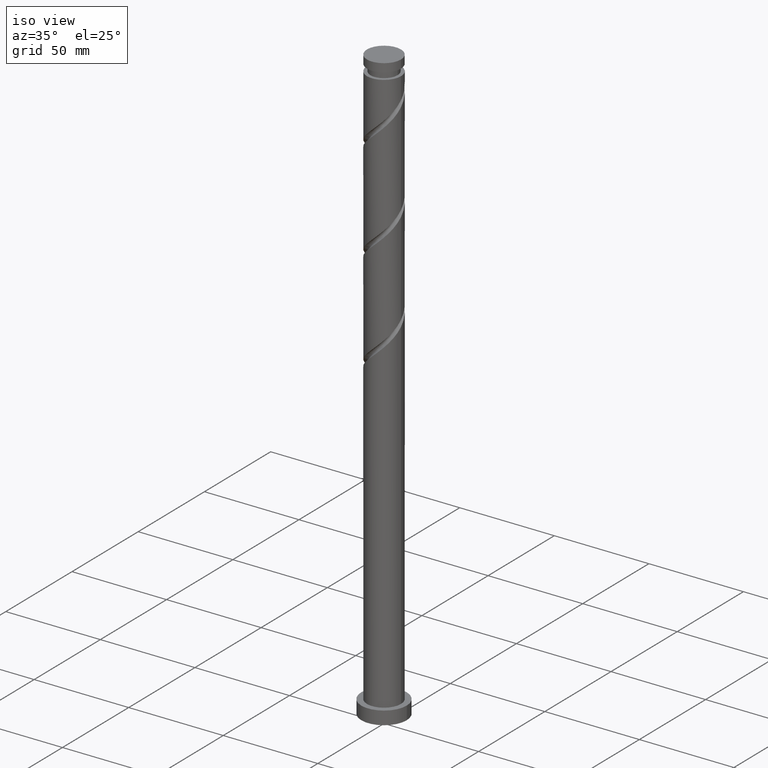
[diagram: clean part render]
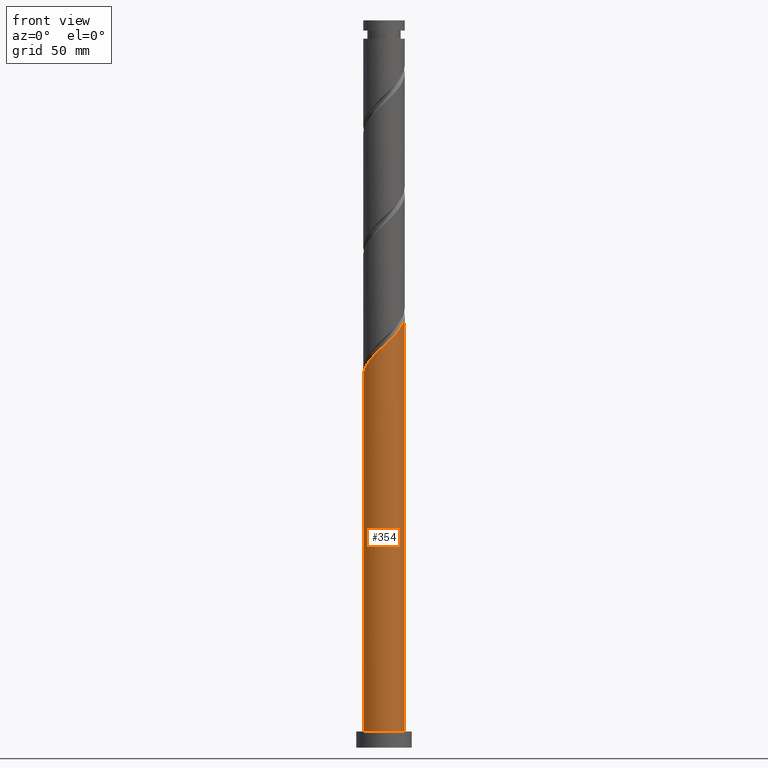
[diagram: tour spotlight — one face highlighted and labeled with its STEP entity id]
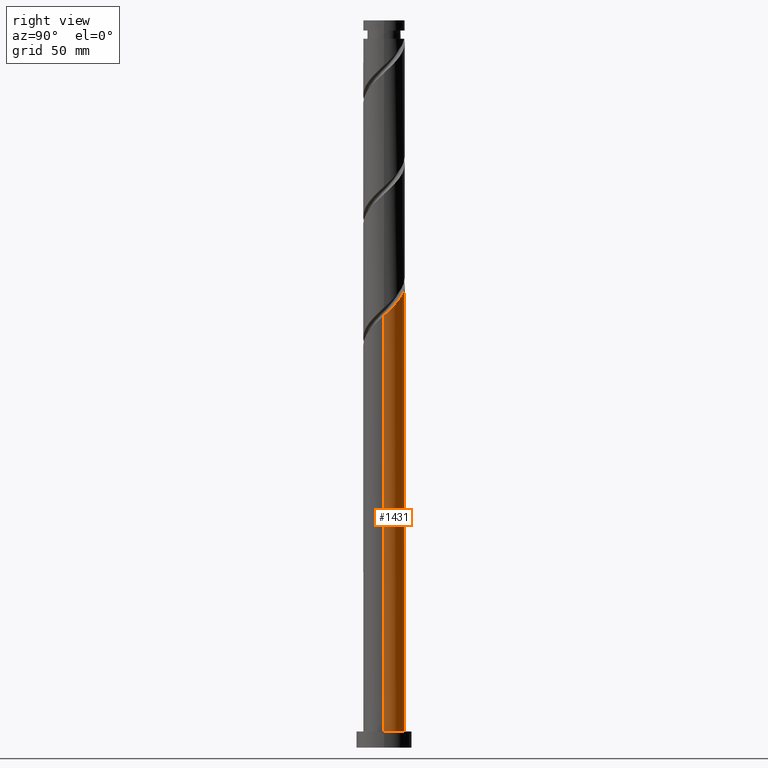
[diagram: tour spotlight — one face highlighted and labeled with its STEP entity id]
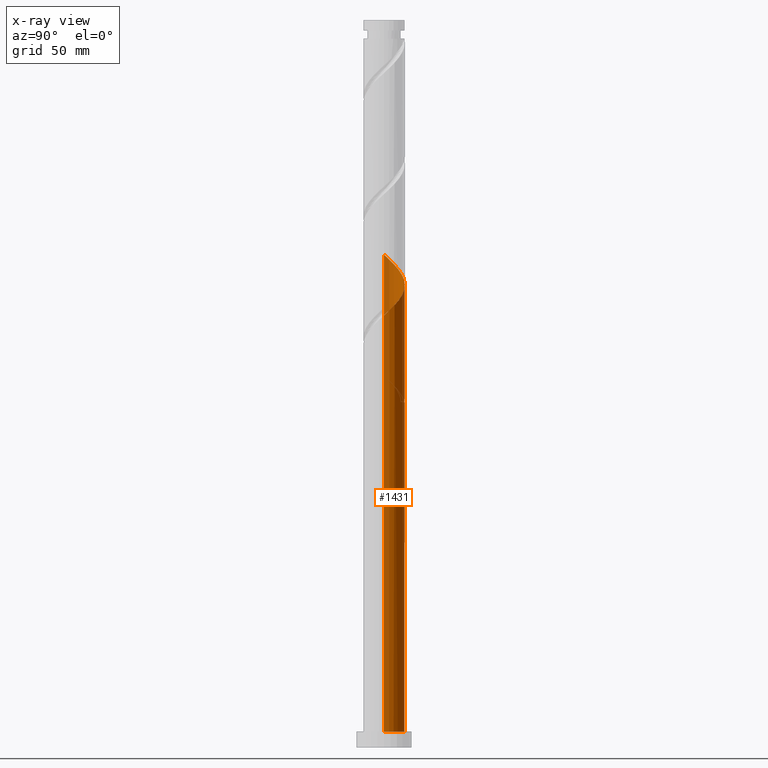
[diagram: x-ray of the same camera — body ghosted, this tour face saturated]
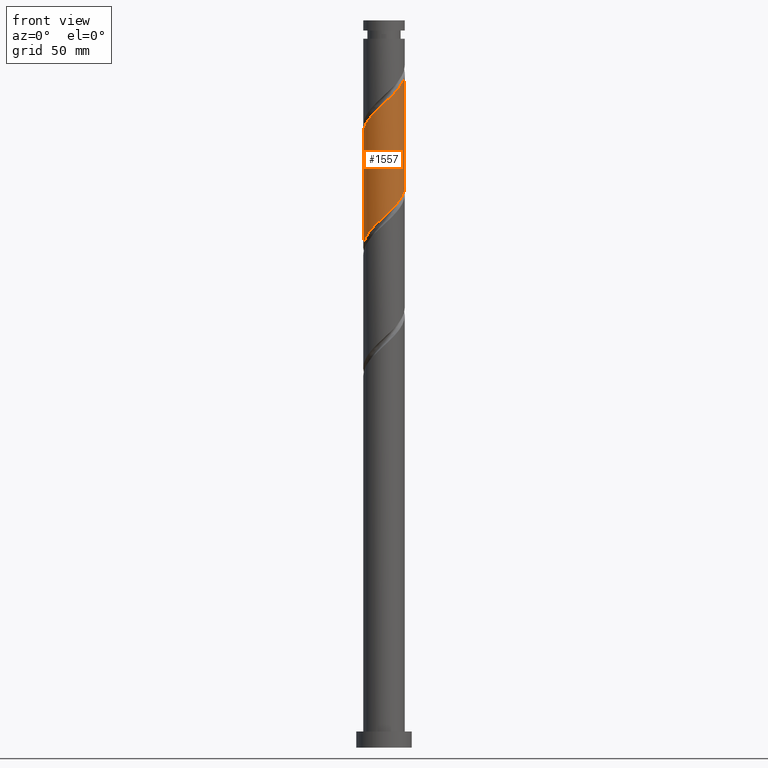
[diagram: tour spotlight — one face highlighted and labeled with its STEP entity id]
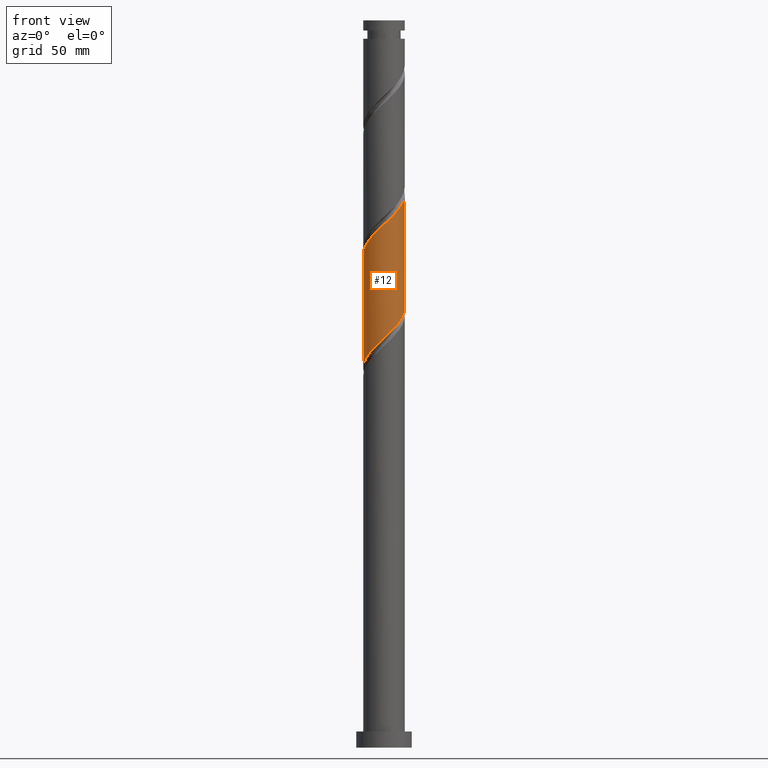
[diagram: tour spotlight — one face highlighted and labeled with its STEP entity id]
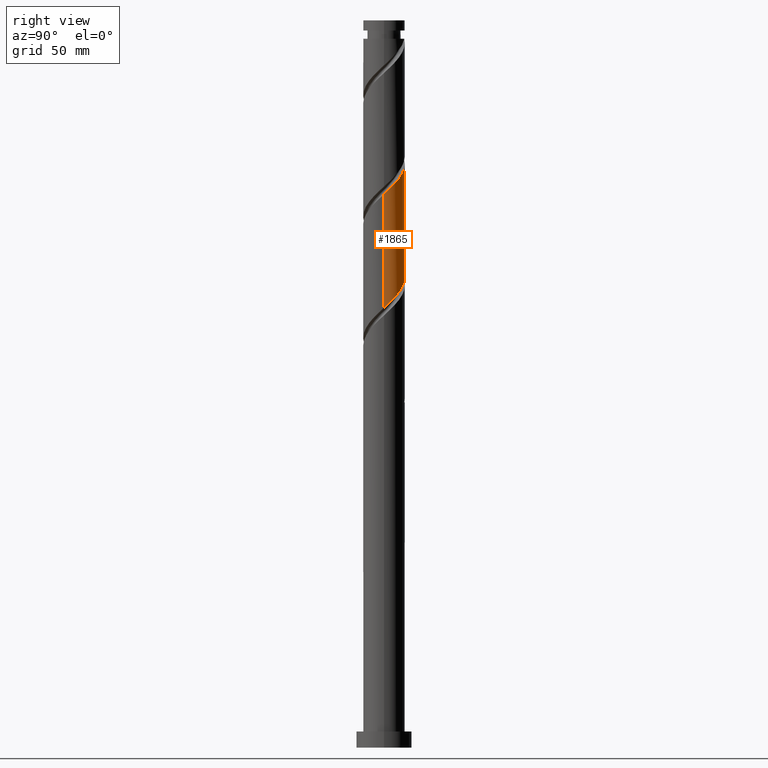
[diagram: tour spotlight — one face highlighted and labeled with its STEP entity id]
A machine part: a face-by-face anatomy tour. The part has 21 B-rep faces; the first image is the clean iso view, then the 5 largest visible faces are spotlighted one at a time (largest first), each with its STEP entity span.

Face 1 — front view, entity #354. In plain terms, the highlighted cylindrical surface (edge-blend (fillet) strip) has radius 9 mm, axis along (-0, -0, -1).
Definition (entity closure, byte-faithful):
#76 = AXIS2_PLACEMENT_3D ( 'NONE', #1629, #883, #1776 ) ;
#92 = CARTESIAN_POINT ( 'NONE',  ( -8.200334224640116076, -3.708708481964599457, 164.5176627942442451 ) ) ;
#93 = CARTESIAN_POINT ( 'NONE',  ( 9.000000000000000000, 1.102182119232617714E-15, 7.000000000000000000 ) ) ;
#143 = CARTESIAN_POINT ( 'NONE',  ( 2.784752716710899190, -8.618205312535543783, 176.7051627942442735 ) ) ;
#226 = CARTESIAN_POINT ( 'NONE',  ( -9.000000000000010658, -0.9045340337332866687, 161.8064167953018000 ) ) ;
#237 = CARTESIAN_POINT ( 'NONE',  ( -7.782463136744686594, -4.632664247218298392, 165.4551627942442167 ) ) ;
#256 = CARTESIAN_POINT ( 'NONE',  ( 6.248274648048931290, -6.556475762541458252, 180.4551627942442167 ) ) ;
#269 = CARTESIAN_POINT ( 'NONE',  ( -2.213239710400117577, -8.723621380155615057, 172.0176627942442451 ) ) ;
#279 = CARTESIAN_POINT ( 'NONE',  ( -6.556475762541458252, -6.248274648048931290, 167.3301627942442451 ) ) ;
#354 = ADVANCED_FACE ( 'NONE', ( #1765 ), #1617, .T. ) ;
#362 = CARTESIAN_POINT ( 'NONE',  ( -9.000000000000000000, 0.000000000000000000, 7.000000000000000000 ) ) ;
#388 = CARTESIAN_POINT ( 'NONE',  ( 8.972993605030067599, -1.230323642922521277, 186.0801627942442451 ) ) ;
#398 = CARTESIAN_POINT ( 'NONE',  ( 9.000000000000007105, -0.1082960744975142720, 187.1177830281130809 ) ) ;
#414 = LINE ( 'NONE', #879, #1441 ) ;
#432 = CARTESIAN_POINT ( 'NONE',  ( -5.001719316145864624, -7.550570467503629146, 169.2051627942442167 ) ) ;
#462 = CARTESIAN_POINT ( 'NONE',  ( 4.632664247218296616, -7.782463136744686594, 178.5801627942442167 ) ) ;
#530 = CARTESIAN_POINT ( 'NONE',  ( 0.000000000000000000, 0.000000000000000000, 7.000000000000000000 ) ) ;
#533 = CARTESIAN_POINT ( 'NONE',  ( 8.474249155281164292, -3.196155777877714765, 184.2051627942441883 ) ) ;
#536 = CARTESIAN_POINT ( 'NONE',  ( -9.000000000000007105, -1.268690749329735236E-15, 160.9681457163381992 ) ) ;
#543 = VERTEX_POINT ( 'NONE', #93 ) ;
#659 = CARTESIAN_POINT ( 'NONE',  ( 9.000000000000007105, 1.492577352152629559E-17, 187.2181457163381992 ) ) ;
#673 = CARTESIAN_POINT ( 'NONE',  ( 7.550570467503629146, -5.001719316145864624, 182.3301627942442451 ) ) ;
#707 = CARTESIAN_POINT ( 'NONE',  ( 5.440469447633614841, -7.169469449643073311, 179.5176627942442167 ) ) ;
#746 = DIRECTION ( 'NONE',  ( -0.000000000000000000, -0.000000000000000000, -1.000000000000000000 ) ) ;
#775 =( BOUNDED_CURVE ( )  B_SPLINE_CURVE ( 2, ( #536, #226, #1129, #1719, #92, #237, #846, #279, #1467, #432, #1017, #884, #269, #876, #1918, #1179, #1479, #143, #1791, #462, #707, #256, #1133, #673, #1153, #533, #1724, #388, #1593, #398, #1449 ),
 .UNSPECIFIED., .F., .T. ) 
 B_SPLINE_CURVE_WITH_KNOTS ( ( 3, 2, 2, 2, 2, 2, 2, 2, 2, 2, 2, 2, 2, 2, 2, 3 ),
 ( 0.05453034012992202112, 0.06250000000000000000, 0.07142857142857139685, 0.08035714285714290472, 0.08928571428571430157, 0.09821428571428569843, 0.1071428571428570953, 0.1160714285714286031, 0.1250000000000000000, 0.1339285714285713969, 0.1428571428571429047, 0.1517857142857143016, 0.1607142857142856984, 0.1696428571428570953, 0.1785714285714286031, 0.1795303401299220836 ),
 .UNSPECIFIED. ) 
 CURVE ( )  GEOMETRIC_REPRESENTATION_ITEM ( )  RATIONAL_B_SPLINE_CURVE ( ( 0.9079949616361950859, 0.9039886423360582457, 0.9090909090909249368, 0.9033747362665999203, 0.9090909090909249368, 0.9033747362665999203, 0.9090909090909249368, 0.9033747362665999203, 0.9090909090909249368, 0.9033747362665999203, 0.9090909090909249368, 0.9033747362665999203, 0.9090909090909249368, 0.9033747362665999203, 0.9090909090909249368, 0.9033747362665999203, 0.9090909090909249368, 0.9033747362665999203, 0.9090909090909249368, 0.9033747362665999203, 0.9090909090909249368, 0.9033747362665999203, 0.9090909090909249368, 0.9033747362665999203, 0.9090909090909249368, 0.9033747362665999203, 0.9090909090909249368, 0.9033747362665999203, 0.9090909090909249368, 0.9084770030214667225, 0.9079949616361950859 ) ) 
 REPRESENTATION_ITEM ( '' )  );
#806 = ORIENTED_EDGE ( 'NONE', *, *, #1102, .F. ) ;
#846 = CARTESIAN_POINT ( 'NONE',  ( -7.169469449643073311, -5.440469447633615729, 166.3926627942442451 ) ) ;
#876 = CARTESIAN_POINT ( 'NONE',  ( -1.230323642922521277, -8.972993605030069375, 172.9551627942442167 ) ) ;
#879 = CARTESIAN_POINT ( 'NONE',  ( 9.000000000000000000, 1.102182119232617714E-15, 315.0000000000000000 ) ) ;
#883 = DIRECTION ( 'NONE',  ( -0.000000000000000000, -0.000000000000000000, -1.000000000000000000 ) ) ;
#884 = CARTESIAN_POINT ( 'NONE',  ( -3.196155777877714765, -8.474249155281164292, 171.0801627942442735 ) ) ;
#888 = VECTOR ( 'NONE', #746, 1000.000000000000000 ) ;
#921 = LINE ( 'NONE', #1795, #888 ) ;
#979 = VERTEX_POINT ( 'NONE', #659 ) ;
#1014 = EDGE_CURVE ( 'NONE', #1538, #543, #1484, .T. ) ;
#1017 = CARTESIAN_POINT ( 'NONE',  ( -4.098937547011789917, -8.012409811392394943, 170.1426627942442451 ) ) ;
#1100 = ORIENTED_EDGE ( 'NONE', *, *, #1014, .T. ) ;
#1102 = EDGE_CURVE ( 'NONE', #1496, #979, #775, .T. ) ;
#1112 = AXIS2_PLACEMENT_3D ( 'NONE', #530, #1879, #1260 ) ;
#1129 = CARTESIAN_POINT ( 'NONE',  ( -8.820000000000009166, -1.790977386791919423, 162.6426627942442167 ) ) ;
#1133 = CARTESIAN_POINT ( 'NONE',  ( 6.899422557776280662, -5.779097539343664103, 181.3926627942442735 ) ) ;
#1153 = CARTESIAN_POINT ( 'NONE',  ( 8.012409811392394943, -4.098937547011791693, 183.2676627942442167 ) ) ;
#1170 = DIRECTION ( 'NONE',  ( -0.000000000000000000, -0.000000000000000000, -1.000000000000000000 ) ) ;
#1179 = CARTESIAN_POINT ( 'NONE',  ( 0.7972020568729391021, -9.021794687464472773, 174.8301627942442735 ) ) ;
#1260 = DIRECTION ( 'NONE',  ( 1.000000000000000000, 0.000000000000000000, 0.000000000000000000 ) ) ;
#1265 = ORIENTED_EDGE ( 'NONE', *, *, #1639, .F. ) ;
#1441 = VECTOR ( 'NONE', #1170, 1000.000000000000000 ) ;
#1449 = CARTESIAN_POINT ( 'NONE',  ( 9.000000000000007105, 1.492577352152629559E-17, 187.2181457163381992 ) ) ;
#1467 = CARTESIAN_POINT ( 'NONE',  ( -5.779097539343663215, -6.899422557776280662, 168.2676627942443019 ) ) ;
#1479 = CARTESIAN_POINT ( 'NONE',  ( 1.790977386791919201, -8.820000000000009166, 175.7676627942442451 ) ) ;
#1484 = CIRCLE ( 'NONE', #1112, 9.000000000000000000 ) ;
#1496 = VERTEX_POINT ( 'NONE', #1834 ) ;
#1538 = VERTEX_POINT ( 'NONE', #362 ) ;
#1564 = ORIENTED_EDGE ( 'NONE', *, *, #1695, .T. ) ;
#1593 = CARTESIAN_POINT ( 'NONE',  ( 8.997394146247270186, -0.2165607930247911983, 187.0176627942442167 ) ) ;
#1617 = CYLINDRICAL_SURFACE ( 'NONE', #76, 9.000000000000000000 ) ;
#1629 = CARTESIAN_POINT ( 'NONE',  ( 0.000000000000000000, 0.000000000000000000, 315.0000000000000000 ) ) ;
#1639 = EDGE_CURVE ( 'NONE', #979, #543, #414, .T. ) ;
#1695 = EDGE_CURVE ( 'NONE', #1496, #1538, #921, .T. ) ;
#1719 = CARTESIAN_POINT ( 'NONE',  ( -8.618205312535543783, -2.784752716710900522, 163.5801627942442167 ) ) ;
#1724 = CARTESIAN_POINT ( 'NONE',  ( 8.723621380155615057, -2.213239710400118021, 185.1426627942441883 ) ) ;
#1765 = FACE_OUTER_BOUND ( 'NONE', #1904, .T. ) ;
#1776 = DIRECTION ( 'NONE',  ( -1.000000000000000000, 0.000000000000000000, 0.000000000000000000 ) ) ;
#1791 = CARTESIAN_POINT ( 'NONE',  ( 3.708708481964599013, -8.200334224640116076, 177.6426627942442451 ) ) ;
#1795 = CARTESIAN_POINT ( 'NONE',  ( -9.000000000000000000, 0.000000000000000000, 315.0000000000000000 ) ) ;
#1834 = CARTESIAN_POINT ( 'NONE',  ( -9.000000000000007105, -1.268690749329735039E-15, 160.9681457163381992 ) ) ;
#1879 = DIRECTION ( 'NONE',  ( 0.000000000000000000, 0.000000000000000000, 1.000000000000000000 ) ) ;
#1904 = EDGE_LOOP ( 'NONE', ( #1265, #806, #1564, #1100 ) ) ;
#1918 = CARTESIAN_POINT ( 'NONE',  ( -0.2165607930247903656, -8.997394146247270186, 173.8926627942442451 ) ) ;

Face 2 — right view, entity #1431. An x-ray twin of the same camera follows (body ghosted, this face saturated) — the face is partly hidden behind the body. In plain terms, the highlighted cylindrical surface (edge-blend (fillet) strip) has radius 9 mm, axis along (-0, -0, -1).
Definition (entity closure, byte-faithful):
#1 = CARTESIAN_POINT ( 'NONE',  ( -9.000000000000007105, 0.1082960744975130091, 213.3677830281131662 ) ) ;
#9 = CIRCLE ( 'NONE', #236, 9.000000000000000000 ) ;
#77 = CARTESIAN_POINT ( 'NONE',  ( -8.723621380155615057, 2.213239710400116689, 158.8926627942442167 ) ) ;
#93 = CARTESIAN_POINT ( 'NONE',  ( 9.000000000000000000, 1.102182119232617714E-15, 7.000000000000000000 ) ) ;
#97 = DIRECTION ( 'NONE',  ( -1.000000000000000000, 0.000000000000000000, 0.000000000000000000 ) ) ;
#116 = DIRECTION ( 'NONE',  ( -0.000000000000000000, -0.000000000000000000, -1.000000000000000000 ) ) ;
#164 = CARTESIAN_POINT ( 'NONE',  ( -7.550570467503629146, 5.001719316145864624, 208.5801627942442451 ) ) ;
#181 =( BOUNDED_CURVE ( )  B_SPLINE_CURVE ( 2, ( #685, #1757, #1434, #412, #227, #847, #877, #1275, #1869, #1018, #720, #867, #1316, #1306, #989, #1906, #577 ),
 .UNSPECIFIED., .F., .T. ) 
 B_SPLINE_CURVE_WITH_KNOTS ( ( 3, 2, 2, 2, 2, 2, 2, 2, 3 ),
 ( 0.9295303401299220836, 0.9375000000000000000, 0.9464285714285713969, 0.9553571428571429047, 0.9642857142857143016, 0.9732142857142856984, 0.9821428571428570953, 0.9910714285714286031, 1.000000000000000000 ),
 .UNSPECIFIED. ) 
 CURVE ( )  GEOMETRIC_REPRESENTATION_ITEM ( )  RATIONAL_B_SPLINE_CURVE ( ( 0.9079949616361887577, 0.9039886423360520284, 0.9090909090909186085, 0.9033747362665937031, 0.9090909090909186085, 0.9033747362665937031, 0.9090909090909186085, 0.9033747362665937031, 0.9090909090909186085, 0.9033747362665937031, 0.9090909090909186085, 0.9033747362665937031, 0.9090909090909186085, 0.9033747362665937031, 0.9090909090909186085, 0.9033747362665937031, 0.9090909090909186085 ) ) 
 REPRESENTATION_ITEM ( '' )  );
#184 = CARTESIAN_POINT ( 'NONE',  ( -3.708708481964599901, 8.200334224640114300, 151.3926627942442451 ) ) ;
#206 = CARTESIAN_POINT ( 'NONE',  ( -8.012409811392394943, 4.098937547011789917, 157.0176627942442451 ) ) ;
#212 = CARTESIAN_POINT ( 'NONE',  ( -6.248274648048933066, 6.556475762541458252, 154.2051627942442167 ) ) ;
#216 = CYLINDRICAL_SURFACE ( 'NONE', #1818, 9.000000000000000000 ) ;
#227 = CARTESIAN_POINT ( 'NONE',  ( -8.200334224640103642, 3.708708481964597237, 160.7676627942442735 ) ) ;
#231 = CARTESIAN_POINT ( 'NONE',  ( 0.000000000000000000, 0.000000000000000000, 149.5176627942442735 ) ) ;
#236 = AXIS2_PLACEMENT_3D ( 'NONE', #784, #1064, #761 ) ;
#247 = ORIENTED_EDGE ( 'NONE', *, *, #830, .F. ) ;
#259 = CARTESIAN_POINT ( 'NONE',  ( 7.782463136744686594, 4.632664247218295728, 191.7051627942442451 ) ) ;
#280 = CARTESIAN_POINT ( 'NONE',  ( -8.012409811392394943, 4.098937547011789917, 209.5176627942442451 ) ) ;
#290 = EDGE_CURVE ( 'NONE', #543, #1538, #9, .T. ) ;
#339 = CARTESIAN_POINT ( 'NONE',  ( 3.196155777877715654, 8.474249155281162516, 197.3301627942442167 ) ) ;
#341 = CARTESIAN_POINT ( 'NONE',  ( -8.999999999999998224, 3.447853683472598378E-15, 164.3171798721502910 ) ) ;
#362 = CARTESIAN_POINT ( 'NONE',  ( -9.000000000000000000, 0.000000000000000000, 7.000000000000000000 ) ) ;
#373 = CARTESIAN_POINT ( 'NONE',  ( -8.972993605030067599, 1.230323642922519944, 159.8301627942442451 ) ) ;
#381 = CARTESIAN_POINT ( 'NONE',  ( -9.000000000000007105, -1.268690749329735236E-15, 160.9681457163381992 ) ) ;
#411 = VERTEX_POINT ( 'NONE', #752 ) ;
#412 = CARTESIAN_POINT ( 'NONE',  ( -8.618205312535531348, 2.784752716710898746, 161.7051627942442735 ) ) ;
#414 = LINE ( 'NONE', #879, #1441 ) ;
#424 = LINE ( 'NONE', #1309, #1476 ) ;
#442 = CARTESIAN_POINT ( 'NONE',  ( 4.098937547011791693, 8.012409811392394943, 196.3926627942442167 ) ) ;
#473 = CARTESIAN_POINT ( 'NONE',  ( -8.972993605030067599, 1.230323642922519944, 212.3301627942442735 ) ) ;
#485 = CARTESIAN_POINT ( 'NONE',  ( -8.997394146247270186, 0.2165607930247899493, 213.2676627942442451 ) ) ;
#503 =( BOUNDED_CURVE ( )  B_SPLINE_CURVE ( 2, ( #1739, #710, #835, #1426, #1007, #259, #1527, #1357, #1345, #1792, #442, #339, #1054, #605, #1517, #1630, #743, #1368, #1067, #595, #1042, #763, #625, #164, #280, #754, #1223, #473, #485, #1, #918 ),
 .UNSPECIFIED., .F., .T. ) 
 B_SPLINE_CURVE_WITH_KNOTS ( ( 3, 2, 2, 2, 2, 2, 2, 2, 2, 2, 2, 2, 2, 2, 2, 3 ),
 ( 0.1795303401299220836, 0.1875000000000000000, 0.1964285714285713969, 0.2053571428571429047, 0.2142857142857143016, 0.2232142857142856984, 0.2321428571428570953, 0.2410714285714286031, 0.2500000000000000000, 0.2589285714285713969, 0.2678571428571429047, 0.2767857142857143016, 0.2857142857142856984, 0.2946428571428570953, 0.3035714285714286031, 0.3045303401299220836 ),
 .UNSPECIFIED. ) 
 CURVE ( )  GEOMETRIC_REPRESENTATION_ITEM ( )  RATIONAL_B_SPLINE_CURVE ( ( 0.9079949616361950859, 0.9039886423360582457, 0.9090909090909249368, 0.9033747362665999203, 0.9090909090909249368, 0.9033747362665999203, 0.9090909090909249368, 0.9033747362665999203, 0.9090909090909249368, 0.9033747362665999203, 0.9090909090909249368, 0.9033747362665999203, 0.9090909090909249368, 0.9033747362665999203, 0.9090909090909249368, 0.9033747362665999203, 0.9090909090909249368, 0.9033747362665999203, 0.9090909090909249368, 0.9033747362665999203, 0.9090909090909249368, 0.9033747362665999203, 0.9090909090909249368, 0.9033747362665999203, 0.9090909090909249368, 0.9033747362665999203, 0.9090909090909249368, 0.9033747362665999203, 0.9090909090909249368, 0.9084770030214667225, 0.9079949616361950859 ) ) 
 REPRESENTATION_ITEM ( '' )  );
#527 = CARTESIAN_POINT ( 'NONE',  ( -5.440469447633615729, 7.169469449643073311, 153.2676627942442735 ) ) ;
#543 = VERTEX_POINT ( 'NONE', #93 ) ;
#564 = ORIENTED_EDGE ( 'NONE', *, *, #1176, .T. ) ;
#577 = CARTESIAN_POINT ( 'NONE',  ( 1.790977386791921422, 8.819999999999996732, 149.5176627942442451 ) ) ;
#595 = CARTESIAN_POINT ( 'NONE',  ( -4.632664247218298392, 7.782463136744686594, 204.8301627942443019 ) ) ;
#605 = CARTESIAN_POINT ( 'NONE',  ( 1.230323642922521499, 8.972993605030067599, 199.2051627942443019 ) ) ;
#625 = CARTESIAN_POINT ( 'NONE',  ( -6.899422557776280662, 5.779097539343663215, 207.6426627942442167 ) ) ;
#659 = CARTESIAN_POINT ( 'NONE',  ( 9.000000000000007105, 1.492577352152629559E-17, 187.2181457163381992 ) ) ;
#660 = EDGE_CURVE ( 'NONE', #1738, #967, #181, .T. ) ;
#671 = DIRECTION ( 'NONE',  ( -1.000000000000000000, 0.000000000000000000, 0.000000000000000000 ) ) ;
#685 = CARTESIAN_POINT ( 'NONE',  ( -8.999999999999998224, 3.447853683472598378E-15, 164.3171798721502626 ) ) ;
#710 = CARTESIAN_POINT ( 'NONE',  ( 9.000000000000008882, 0.9045340337332924419, 188.0564167953017716 ) ) ;
#719 = EDGE_LOOP ( 'NONE', ( #247, #1847, #950, #1337, #1273, #564, #1837, #1056 ) ) ;
#720 = CARTESIAN_POINT ( 'NONE',  ( -4.098937547011781923, 8.012409811392387837, 155.1426627942442451 ) ) ;
#743 = CARTESIAN_POINT ( 'NONE',  ( -1.790977386791918535, 8.820000000000009166, 202.0176627942442451 ) ) ;
#746 = DIRECTION ( 'NONE',  ( -0.000000000000000000, -0.000000000000000000, -1.000000000000000000 ) ) ;
#752 = CARTESIAN_POINT ( 'NONE',  ( -1.790977386791918313, 8.820000000000009166, 149.5176627942442451 ) ) ;
#754 = CARTESIAN_POINT ( 'NONE',  ( -8.474249155281162516, 3.196155777877714321, 210.4551627942442167 ) ) ;
#761 = DIRECTION ( 'NONE',  ( 1.000000000000000000, 0.000000000000000000, 0.000000000000000000 ) ) ;
#763 = CARTESIAN_POINT ( 'NONE',  ( -6.248274648048933066, 6.556475762541458252, 206.7051627942442167 ) ) ;
#784 = CARTESIAN_POINT ( 'NONE',  ( 0.000000000000000000, 0.000000000000000000, 7.000000000000000000 ) ) ;
#795 = CARTESIAN_POINT ( 'NONE',  ( -4.632664247218298392, 7.782463136744686594, 152.3301627942441883 ) ) ;
#830 = EDGE_CURVE ( 'NONE', #979, #1347, #503, .T. ) ;
#835 = CARTESIAN_POINT ( 'NONE',  ( 8.820000000000009166, 1.790977386791919201, 188.8926627942442735 ) ) ;
#839 = DIRECTION ( 'NONE',  ( 0.000000000000000000, -0.000000000000000000, -1.000000000000000000 ) ) ;
#847 = CARTESIAN_POINT ( 'NONE',  ( -7.782463136744675047, 4.632664247218293063, 159.8301627942441883 ) ) ;
#867 = CARTESIAN_POINT ( 'NONE',  ( -3.196155777877709880, 8.474249155281153634, 154.2051627942442735 ) ) ;
#877 = CARTESIAN_POINT ( 'NONE',  ( -7.169469449643061765, 5.440469447633611288, 158.8926627942442451 ) ) ;
#879 = CARTESIAN_POINT ( 'NONE',  ( 9.000000000000000000, 1.102182119232617714E-15, 315.0000000000000000 ) ) ;
#888 = VECTOR ( 'NONE', #746, 1000.000000000000000 ) ;
#918 = CARTESIAN_POINT ( 'NONE',  ( -9.000000000000007105, -1.268690749329735236E-15, 213.4681457163381992 ) ) ;
#921 = LINE ( 'NONE', #1795, #888 ) ;
#939 = EDGE_CURVE ( 'NONE', #411, #1496, #1706, .T. ) ;
#950 = ORIENTED_EDGE ( 'NONE', *, *, #290, .T. ) ;
#967 = VERTEX_POINT ( 'NONE', #1289 ) ;
#979 = VERTEX_POINT ( 'NONE', #659 ) ;
#980 = CIRCLE ( 'NONE', #1596, 9.000000000000000000 ) ;
#989 = CARTESIAN_POINT ( 'NONE',  ( -0.2165607930247878399, 8.997394146247255975, 151.3926627942443304 ) ) ;
#1007 = CARTESIAN_POINT ( 'NONE',  ( 8.200334224640116076, 3.708708481964598125, 190.7676627942442167 ) ) ;
#1018 = CARTESIAN_POINT ( 'NONE',  ( -5.001719316145856631, 7.550570467503619376, 156.0801627942442451 ) ) ;
#1042 = CARTESIAN_POINT ( 'NONE',  ( -5.440469447633615729, 7.169469449643073311, 205.7676627942441883 ) ) ;
#1054 = CARTESIAN_POINT ( 'NONE',  ( 2.213239710400118909, 8.723621380155615057, 198.2676627942441883 ) ) ;
#1056 = ORIENTED_EDGE ( 'NONE', *, *, #1926, .F. ) ;
#1064 = DIRECTION ( 'NONE',  ( 0.000000000000000000, 0.000000000000000000, 1.000000000000000000 ) ) ;
#1067 = CARTESIAN_POINT ( 'NONE',  ( -3.708708481964599901, 8.200334224640114300, 203.8926627942442167 ) ) ;
#1098 = CARTESIAN_POINT ( 'NONE',  ( -8.474249155281162516, 3.196155777877714321, 157.9551627942441883 ) ) ;
#1104 = DIRECTION ( 'NONE',  ( -0.000000000000000000, -0.000000000000000000, -1.000000000000000000 ) ) ;
#1170 = DIRECTION ( 'NONE',  ( -0.000000000000000000, -0.000000000000000000, -1.000000000000000000 ) ) ;
#1176 = EDGE_CURVE ( 'NONE', #411, #967, #980, .T. ) ;
#1223 = CARTESIAN_POINT ( 'NONE',  ( -8.723621380155615057, 2.213239710400116689, 211.3926627942442167 ) ) ;
#1251 = CARTESIAN_POINT ( 'NONE',  ( -8.997394146247270186, 0.2165607930247899493, 160.7676627942442451 ) ) ;
#1273 = ORIENTED_EDGE ( 'NONE', *, *, #939, .F. ) ;
#1275 = CARTESIAN_POINT ( 'NONE',  ( -6.556475762541449370, 6.248274648048924185, 157.9551627942442451 ) ) ;
#1289 = CARTESIAN_POINT ( 'NONE',  ( 1.790977386791921422, 8.819999999999996732, 149.5176627942442451 ) ) ;
#1306 = CARTESIAN_POINT ( 'NONE',  ( -1.230323642922516170, 8.972993605030055164, 152.3301627942443019 ) ) ;
#1309 = CARTESIAN_POINT ( 'NONE',  ( -9.000000000000000000, 0.000000000000000000, 315.0000000000000000 ) ) ;
#1316 = CARTESIAN_POINT ( 'NONE',  ( -2.213239710400112692, 8.723621380155604399, 153.2676627942442451 ) ) ;
#1337 = ORIENTED_EDGE ( 'NONE', *, *, #1695, .F. ) ;
#1345 = CARTESIAN_POINT ( 'NONE',  ( 5.779097539343664103, 6.899422557776280662, 194.5176627942442735 ) ) ;
#1347 = VERTEX_POINT ( 'NONE', #1899 ) ;
#1357 = CARTESIAN_POINT ( 'NONE',  ( 6.556475762541460917, 6.248274648048930402, 193.5801627942442167 ) ) ;
#1368 = CARTESIAN_POINT ( 'NONE',  ( -2.784752716710900522, 8.618205312535543783, 202.9551627942442735 ) ) ;
#1410 = CARTESIAN_POINT ( 'NONE',  ( -7.550570467503629146, 5.001719316145864624, 156.0801627942442451 ) ) ;
#1421 = CARTESIAN_POINT ( 'NONE',  ( 0.000000000000000000, 0.000000000000000000, 315.0000000000000000 ) ) ;
#1426 = CARTESIAN_POINT ( 'NONE',  ( 8.618205312535543783, 2.784752716710899190, 189.8301627942441314 ) ) ;
#1431 = ADVANCED_FACE ( 'NONE', ( #1556 ), #216, .T. ) ;
#1434 = CARTESIAN_POINT ( 'NONE',  ( -8.819999999999996732, 1.790977386791920090, 162.6426627942442735 ) ) ;
#1441 = VECTOR ( 'NONE', #1170, 1000.000000000000000 ) ;
#1476 = VECTOR ( 'NONE', #116, 1000.000000000000000 ) ;
#1496 = VERTEX_POINT ( 'NONE', #1834 ) ;
#1517 = CARTESIAN_POINT ( 'NONE',  ( 0.2165607930247918089, 8.997394146247270186, 200.1426627942442451 ) ) ;
#1527 = CARTESIAN_POINT ( 'NONE',  ( 7.169469449643073311, 5.440469447633614841, 192.6426627942442451 ) ) ;
#1536 = CARTESIAN_POINT ( 'NONE',  ( -9.000000000000007105, 0.1082960744975200590, 160.8677830281130809 ) ) ;
#1538 = VERTEX_POINT ( 'NONE', #362 ) ;
#1545 = CARTESIAN_POINT ( 'NONE',  ( -1.790977386791918313, 8.820000000000009166, 149.5176627942442451 ) ) ;
#1556 = FACE_OUTER_BOUND ( 'NONE', #719, .T. ) ;
#1596 = AXIS2_PLACEMENT_3D ( 'NONE', #231, #839, #97 ) ;
#1630 = CARTESIAN_POINT ( 'NONE',  ( -0.7972020568729379919, 9.021794687464472773, 201.0801627942442451 ) ) ;
#1639 = EDGE_CURVE ( 'NONE', #979, #543, #414, .T. ) ;
#1695 = EDGE_CURVE ( 'NONE', #1496, #1538, #921, .T. ) ;
#1697 = CARTESIAN_POINT ( 'NONE',  ( -6.899422557776280662, 5.779097539343663215, 155.1426627942442167 ) ) ;
#1706 =( BOUNDED_CURVE ( )  B_SPLINE_CURVE ( 2, ( #1545, #1707, #184, #795, #527, #212, #1697, #1410, #206, #1098, #77, #373, #1251, #1536, #381 ),
 .UNSPECIFIED., .F., .T. ) 
 B_SPLINE_CURVE_WITH_KNOTS ( ( 3, 2, 2, 2, 2, 2, 2, 3 ),
 ( 0.000000000000000000, 0.008928571428571396851, 0.01785714285714290472, 0.02678571428571430504, 0.03571428571428569843, 0.04464285714285709528, 0.05357142857142861009, 0.05453034012992202112 ),
 .UNSPECIFIED. ) 
 CURVE ( )  GEOMETRIC_REPRESENTATION_ITEM ( )  RATIONAL_B_SPLINE_CURVE ( ( 0.9090909090909249368, 0.9033747362665999203, 0.9090909090909249368, 0.9033747362665999203, 0.9090909090909249368, 0.9033747362665999203, 0.9090909090909249368, 0.9033747362665999203, 0.9090909090909249368, 0.9033747362665999203, 0.9090909090909249368, 0.9033747362665999203, 0.9090909090909249368, 0.9084770030214667225, 0.9079949616361950859 ) ) 
 REPRESENTATION_ITEM ( '' )  );
#1707 = CARTESIAN_POINT ( 'NONE',  ( -2.784752716710900522, 8.618205312535543783, 150.4551627942442451 ) ) ;
#1738 = VERTEX_POINT ( 'NONE', #341 ) ;
#1739 = CARTESIAN_POINT ( 'NONE',  ( 9.000000000000007105, 1.492577352152629559E-17, 187.2181457163381992 ) ) ;
#1757 = CARTESIAN_POINT ( 'NONE',  ( -8.999999999999994671, 0.9045340337332943292, 163.4789087931867186 ) ) ;
#1792 = CARTESIAN_POINT ( 'NONE',  ( 5.001719316145865513, 7.550570467503626482, 195.4551627942442167 ) ) ;
#1795 = CARTESIAN_POINT ( 'NONE',  ( -9.000000000000000000, 0.000000000000000000, 315.0000000000000000 ) ) ;
#1818 = AXIS2_PLACEMENT_3D ( 'NONE', #1421, #1104, #671 ) ;
#1834 = CARTESIAN_POINT ( 'NONE',  ( -9.000000000000007105, -1.268690749329735039E-15, 160.9681457163381992 ) ) ;
#1837 = ORIENTED_EDGE ( 'NONE', *, *, #660, .F. ) ;
#1847 = ORIENTED_EDGE ( 'NONE', *, *, #1639, .T. ) ;
#1869 = CARTESIAN_POINT ( 'NONE',  ( -5.779097539343653445, 6.899422557776271780, 157.0176627942442451 ) ) ;
#1899 = CARTESIAN_POINT ( 'NONE',  ( -9.000000000000007105, -1.268690749329735039E-15, 213.4681457163381992 ) ) ;
#1906 = CARTESIAN_POINT ( 'NONE',  ( 0.7972020568729405454, 9.021794687464462115, 150.4551627942442167 ) ) ;
#1926 = EDGE_CURVE ( 'NONE', #1347, #1738, #424, .T. ) ;

Face 3 — front view, entity #1557. In plain terms, the highlighted cylindrical surface (edge-blend (fillet) strip) has radius 9 mm, axis along (-0, -0, -1).
Definition (entity closure, byte-faithful):
#5 = CARTESIAN_POINT ( 'NONE',  ( -7.782463136744686594, -4.632664247218298392, 270.4551627942441883 ) ) ;
#25 = CARTESIAN_POINT ( 'NONE',  ( -0.7972020568729413226, -9.021794687464462115, 229.2051627942442735 ) ) ;
#34 = CARTESIAN_POINT ( 'NONE',  ( 8.819999999999996732, -1.790977386791921200, 241.3926627942443019 ) ) ;
#51 = CARTESIAN_POINT ( 'NONE',  ( 6.899422557776280662, -5.779097539343664103, 286.3926627942442451 ) ) ;
#169 = CARTESIAN_POINT ( 'NONE',  ( 8.997394146247270186, -0.2165607930247911983, 292.0176627942442451 ) ) ;
#183 = CARTESIAN_POINT ( 'NONE',  ( -6.899422557776271780, -5.779097539343652556, 222.6426627942443019 ) ) ;
#187 = CARTESIAN_POINT ( 'NONE',  ( 4.632664247218296616, -7.782463136744686594, 283.5801627942441883 ) ) ;
#241 = LINE ( 'NONE', #851, #731 ) ;
#244 = CARTESIAN_POINT ( 'NONE',  ( -5.779097539343663215, -6.899422557776280662, 273.2676627942441883 ) ) ;
#248 = CARTESIAN_POINT ( 'NONE',  ( 9.000000000000007105, -1.358245390458892985E-15, 292.2181457163381992 ) ) ;
#278 = CARTESIAN_POINT ( 'NONE',  ( 1.230323642922515059, -8.972993605030055164, 231.0801627942442735 ) ) ;
#291 =( BOUNDED_CURVE ( )  B_SPLINE_CURVE ( 2, ( #741, #1492, #34, #1640, #336, #1222, #1525, #471, #1650, #1809, #1354, #894, #450, #278, #482, #25, #323, #1916, #917, #612, #1515, #773, #183, #1025, #1189, #585, #1200, #1178, #1503, #1478, #307 ),
 .UNSPECIFIED., .F., .T. ) 
 B_SPLINE_CURVE_WITH_KNOTS ( ( 3, 2, 2, 2, 2, 2, 2, 2, 2, 2, 2, 2, 2, 2, 2, 3 ),
 ( 0.5545303401299221946, 0.5625000000000000000, 0.5714285714285713969, 0.5803571428571429047, 0.5892857142857143016, 0.5982142857142856984, 0.6071428571428570953, 0.6160714285714286031, 0.6250000000000000000, 0.6339285714285713969, 0.6428571428571429047, 0.6517857142857143016, 0.6607142857142856984, 0.6696428571428570953, 0.6785714285714286031, 0.6795303401299221946 ),
 .UNSPECIFIED. ) 
 CURVE ( )  GEOMETRIC_REPRESENTATION_ITEM ( )  RATIONAL_B_SPLINE_CURVE ( ( 0.9079949616361886466, 0.9039886423360520284, 0.9090909090909186085, 0.9033747362665937031, 0.9090909090909186085, 0.9033747362665937031, 0.9090909090909186085, 0.9033747362665937031, 0.9090909090909186085, 0.9033747362665937031, 0.9090909090909186085, 0.9033747362665937031, 0.9090909090909186085, 0.9033747362665937031, 0.9090909090909186085, 0.9033747362665937031, 0.9090909090909186085, 0.9033747362665937031, 0.9090909090909186085, 0.9033747362665937031, 0.9090909090909186085, 0.9033747362665937031, 0.9090909090909186085, 0.9033747362665937031, 0.9090909090909186085, 0.9033747362665937031, 0.9090909090909186085, 0.9033747362665937031, 0.9090909090909186085, 0.9084770030214603942, 0.9079949616361886466 ) ) 
 REPRESENTATION_ITEM ( '' )  );
#302 = CARTESIAN_POINT ( 'NONE',  ( -3.196155777877714765, -8.474249155281164292, 276.0801627942441883 ) ) ;
#307 = CARTESIAN_POINT ( 'NONE',  ( -8.999999999999996447, 3.447853683472598378E-15, 216.8171798721502910 ) ) ;
#315 = CARTESIAN_POINT ( 'NONE',  ( -5.001719316145864624, -7.550570467503629146, 274.2051627942443019 ) ) ;
#320 = EDGE_CURVE ( 'NONE', #826, #658, #604, .T. ) ;
#323 = CARTESIAN_POINT ( 'NONE',  ( -1.790977386791920090, -8.819999999999996732, 228.2676627942442735 ) ) ;
#329 = CARTESIAN_POINT ( 'NONE',  ( -6.556475762541458252, -6.248274648048931290, 272.3301627942441883 ) ) ;
#336 = CARTESIAN_POINT ( 'NONE',  ( 8.200334224640103642, -3.708708481964597681, 239.5176627942442167 ) ) ;
#351 = EDGE_CURVE ( 'NONE', #658, #1609, #291, .T. ) ;
#370 = ORIENTED_EDGE ( 'NONE', *, *, #320, .F. ) ;
#379 = DIRECTION ( 'NONE',  ( -0.000000000000000000, -0.000000000000000000, -1.000000000000000000 ) ) ;
#403 = CARTESIAN_POINT ( 'NONE',  ( 8.999999999999994671, -4.701618659280815540E-15, 243.0671798721502910 ) ) ;
#450 = CARTESIAN_POINT ( 'NONE',  ( 2.213239710400111360, -8.723621380155604399, 232.0176627942442735 ) ) ;
#471 = CARTESIAN_POINT ( 'NONE',  ( 6.556475762541449370, -6.248274648048925961, 236.7051627942441883 ) ) ;
#482 = CARTESIAN_POINT ( 'NONE',  ( 0.2165607930247870350, -8.997394146247255975, 230.1426627942442451 ) ) ;
#498 = CARTESIAN_POINT ( 'NONE',  ( 9.000000000000007105, -1.358245390458892985E-15, 292.2181457163381992 ) ) ;
#514 = CARTESIAN_POINT ( 'NONE',  ( 8.474249155281164292, -3.196155777877714765, 289.2051627942441314 ) ) ;
#561 = CARTESIAN_POINT ( 'NONE',  ( -8.618205312535543783, -2.784752716710900522, 268.5801627942442451 ) ) ;
#562 = VECTOR ( 'NONE', #623, 1000.000000000000000 ) ;
#579 = DIRECTION ( 'NONE',  ( -1.000000000000000000, 0.000000000000000000, 0.000000000000000000 ) ) ;
#585 = CARTESIAN_POINT ( 'NONE',  ( -8.474249155281153634, -3.196155777877707660, 219.8301627942442451 ) ) ;
#604 = LINE ( 'NONE', #1211, #562 ) ;
#607 = CARTESIAN_POINT ( 'NONE',  ( -8.200334224640116076, -3.708708481964599457, 269.5176627942442451 ) ) ;
#612 = CARTESIAN_POINT ( 'NONE',  ( -4.632664247218293063, -7.782463136744674159, 225.4551627942442735 ) ) ;
#623 = DIRECTION ( 'NONE',  ( -0.000000000000000000, -0.000000000000000000, -1.000000000000000000 ) ) ;
#628 = CARTESIAN_POINT ( 'NONE',  ( 8.012409811392394943, -4.098937547011791693, 288.2676627942442451 ) ) ;
#658 = VERTEX_POINT ( 'NONE', #403 ) ;
#674 = CARTESIAN_POINT ( 'NONE',  ( -9.000000000000005329, -0.9045340337333186431, 266.8064167953018568 ) ) ;
#676 = ORIENTED_EDGE ( 'NONE', *, *, #351, .F. ) ;
#706 = CARTESIAN_POINT ( 'NONE',  ( -1.230323642922521277, -8.972993605030069375, 277.9551627942441883 ) ) ;
#731 = VECTOR ( 'NONE', #379, 1000.000000000000000 ) ;
#741 = CARTESIAN_POINT ( 'NONE',  ( 8.999999999999994671, -4.701618659280815540E-15, 243.0671798721502910 ) ) ;
#773 = CARTESIAN_POINT ( 'NONE',  ( -6.248274648048925961, -6.556475762541449370, 223.5801627942442451 ) ) ;
#780 = CARTESIAN_POINT ( 'NONE',  ( -7.169469449643073311, -5.440469447633615729, 271.3926627942442451 ) ) ;
#820 = CARTESIAN_POINT ( 'NONE',  ( 3.708708481964599013, -8.200334224640116076, 282.6426627942442451 ) ) ;
#826 = VERTEX_POINT ( 'NONE', #248 ) ;
#837 = FACE_OUTER_BOUND ( 'NONE', #1667, .T. ) ;
#851 = CARTESIAN_POINT ( 'NONE',  ( -9.000000000000000000, 0.000000000000000000, 315.0000000000000000 ) ) ;
#854 = CARTESIAN_POINT ( 'NONE',  ( -4.098937547011789917, -8.012409811392394943, 275.1426627942441883 ) ) ;
#894 = CARTESIAN_POINT ( 'NONE',  ( 3.196155777877707660, -8.474249155281153634, 232.9551627942442735 ) ) ;
#899 = CARTESIAN_POINT ( 'NONE',  ( -0.2165607930247903656, -8.997394146247270186, 278.8926627942441314 ) ) ;
#912 = CARTESIAN_POINT ( 'NONE',  ( 0.7972020568729391021, -9.021794687464472773, 279.8301627942443019 ) ) ;
#917 = CARTESIAN_POINT ( 'NONE',  ( -3.708708481964597237, -8.200334224640103642, 226.3926627942442735 ) ) ;
#934 = CARTESIAN_POINT ( 'NONE',  ( 2.784752716710899190, -8.618205312535543783, 281.7051627942441314 ) ) ;
#945 = CARTESIAN_POINT ( 'NONE',  ( 7.550570467503629146, -5.001719316145864624, 287.3301627942441314 ) ) ;
#971 = EDGE_CURVE ( 'NONE', #1507, #826, #1844, .T. ) ;
#999 = CARTESIAN_POINT ( 'NONE',  ( 0.000000000000000000, 0.000000000000000000, 315.0000000000000000 ) ) ;
#1025 = CARTESIAN_POINT ( 'NONE',  ( -7.550570467503618488, -5.001719316145855743, 221.7051627942442451 ) ) ;
#1032 = CARTESIAN_POINT ( 'NONE',  ( -2.213239710400117577, -8.723621380155615057, 277.0176627942442451 ) ) ;
#1091 = ORIENTED_EDGE ( 'NONE', *, *, #1152, .T. ) ;
#1109 = CARTESIAN_POINT ( 'NONE',  ( 8.723621380155615057, -2.213239710400118021, 290.1426627942443019 ) ) ;
#1111 = CARTESIAN_POINT ( 'NONE',  ( -9.000000000000007105, 7.462886760763147794E-17, 265.9681457163381992 ) ) ;
#1141 = DIRECTION ( 'NONE',  ( -0.000000000000000000, -0.000000000000000000, -1.000000000000000000 ) ) ;
#1152 = EDGE_CURVE ( 'NONE', #1507, #1609, #241, .T. ) ;
#1178 = CARTESIAN_POINT ( 'NONE',  ( -8.972993605030055164, -1.230323642922515281, 217.9551627942442735 ) ) ;
#1189 = CARTESIAN_POINT ( 'NONE',  ( -8.012409811392387837, -4.098937547011781923, 220.7676627942442735 ) ) ;
#1200 = CARTESIAN_POINT ( 'NONE',  ( -8.723621380155604399, -2.213239710400111360, 218.8926627942442735 ) ) ;
#1211 = CARTESIAN_POINT ( 'NONE',  ( 9.000000000000000000, 1.102182119232617714E-15, 315.0000000000000000 ) ) ;
#1215 = ORIENTED_EDGE ( 'NONE', *, *, #971, .F. ) ;
#1222 = CARTESIAN_POINT ( 'NONE',  ( 7.782463136744671495, -4.632664247218293063, 238.5801627942443304 ) ) ;
#1240 = AXIS2_PLACEMENT_3D ( 'NONE', #999, #1141, #579 ) ;
#1354 = CARTESIAN_POINT ( 'NONE',  ( 4.098937547011781035, -8.012409811392387837, 233.8926627942442451 ) ) ;
#1385 = CARTESIAN_POINT ( 'NONE',  ( 8.972993605030067599, -1.230323642922521277, 291.0801627942442451 ) ) ;
#1399 = CARTESIAN_POINT ( 'NONE',  ( 6.248274648048931290, -6.556475762541458252, 285.4551627942442451 ) ) ;
#1478 = CARTESIAN_POINT ( 'NONE',  ( -8.999999999999996447, -0.1082960744974981321, 216.9175425603754093 ) ) ;
#1492 = CARTESIAN_POINT ( 'NONE',  ( 8.999999999999992895, -0.9045340337333079850, 242.2289087931866618 ) ) ;
#1503 = CARTESIAN_POINT ( 'NONE',  ( -8.997394146247255975, -0.2165607930247874791, 217.0176627942442735 ) ) ;
#1507 = VERTEX_POINT ( 'NONE', #1111 ) ;
#1510 = CARTESIAN_POINT ( 'NONE',  ( 1.790977386791919201, -8.820000000000009166, 280.7676627942442451 ) ) ;
#1515 = CARTESIAN_POINT ( 'NONE',  ( -5.440469447633611288, -7.169469449643059988, 224.5176627942443019 ) ) ;
#1525 = CARTESIAN_POINT ( 'NONE',  ( 7.169469449643059988, -5.440469447633611288, 237.6426627942443019 ) ) ;
#1557 = ADVANCED_FACE ( 'NONE', ( #837 ), #1908, .T. ) ;
#1609 = VERTEX_POINT ( 'NONE', #1732 ) ;
#1640 = CARTESIAN_POINT ( 'NONE',  ( 8.618205312535531348, -2.784752716710900078, 240.4551627942442735 ) ) ;
#1650 = CARTESIAN_POINT ( 'NONE',  ( 5.779097539343652556, -6.899422557776271780, 235.7676627942443019 ) ) ;
#1657 = CARTESIAN_POINT ( 'NONE',  ( -8.820000000000009166, -1.790977386791919423, 267.6426627942442451 ) ) ;
#1667 = EDGE_LOOP ( 'NONE', ( #370, #1215, #1091, #676 ) ) ;
#1677 = CARTESIAN_POINT ( 'NONE',  ( 5.440469447633614841, -7.169469449643073311, 284.5176627942441314 ) ) ;
#1704 = CARTESIAN_POINT ( 'NONE',  ( -9.000000000000008882, 7.462886760763147794E-17, 265.9681457163381992 ) ) ;
#1732 = CARTESIAN_POINT ( 'NONE',  ( -8.999999999999998224, 3.447853683472598378E-15, 216.8171798721502910 ) ) ;
#1809 = CARTESIAN_POINT ( 'NONE',  ( 5.001719316145855743, -7.550570467503620264, 234.8301627942442167 ) ) ;
#1838 = CARTESIAN_POINT ( 'NONE',  ( 9.000000000000007105, -0.1082960744975142720, 292.1177830281131378 ) ) ;
#1844 =( BOUNDED_CURVE ( )  B_SPLINE_CURVE ( 2, ( #1704, #674, #1657, #561, #607, #5, #780, #329, #244, #315, #854, #302, #1032, #706, #899, #912, #1510, #934, #820, #187, #1677, #1399, #51, #945, #628, #514, #1109, #1385, #169, #1838, #498 ),
 .UNSPECIFIED., .F., .T. ) 
 B_SPLINE_CURVE_WITH_KNOTS ( ( 3, 2, 2, 2, 2, 2, 2, 2, 2, 2, 2, 2, 2, 2, 2, 3 ),
 ( 0.5545303401299223056, 0.5625000000000000000, 0.5714285714285713969, 0.5803571428571427937, 0.5892857142857143016, 0.5982142857142856984, 0.6071428571428572063, 0.6160714285714286031, 0.6250000000000000000, 0.6339285714285713969, 0.6428571428571427937, 0.6517857142857143016, 0.6607142857142856984, 0.6696428571428572063, 0.6785714285714286031, 0.6795303401299220836 ),
 .UNSPECIFIED. ) 
 CURVE ( )  GEOMETRIC_REPRESENTATION_ITEM ( )  RATIONAL_B_SPLINE_CURVE ( ( 0.9079949616361948639, 0.9039886423360583567, 0.9090909090909249368, 0.9033747362665999203, 0.9090909090909249368, 0.9033747362665999203, 0.9090909090909249368, 0.9033747362665999203, 0.9090909090909249368, 0.9033747362665999203, 0.9090909090909249368, 0.9033747362665999203, 0.9090909090909249368, 0.9033747362665999203, 0.9090909090909249368, 0.9033747362665999203, 0.9090909090909249368, 0.9033747362665999203, 0.9090909090909249368, 0.9033747362665999203, 0.9090909090909249368, 0.9033747362665999203, 0.9090909090909249368, 0.9033747362665999203, 0.9090909090909249368, 0.9033747362665999203, 0.9090909090909249368, 0.9033747362665999203, 0.9090909090909249368, 0.9084770030214667225, 0.9079949616361950859 ) ) 
 REPRESENTATION_ITEM ( '' )  );
#1908 = CYLINDRICAL_SURFACE ( 'NONE', #1240, 9.000000000000000000 ) ;
#1916 = CARTESIAN_POINT ( 'NONE',  ( -2.784752716710899634, -8.618205312535531348, 227.3301627942442735 ) ) ;

Face 4 — front view, entity #12. In plain terms, the highlighted cylindrical surface (edge-blend (fillet) strip) has radius 9 mm, axis along (-0, -0, -1).
Definition (entity closure, byte-faithful):
#4 = CARTESIAN_POINT ( 'NONE',  ( 8.972993605030067599, -1.230323642922521277, 238.5801627942442451 ) ) ;
#12 = ADVANCED_FACE ( 'NONE', ( #1756 ), #401, .T. ) ;
#17 = CARTESIAN_POINT ( 'NONE',  ( 9.000000000000007105, -0.1082960744975456496, 239.6177830281130525 ) ) ;
#19 = CARTESIAN_POINT ( 'NONE',  ( 6.556475762541449370, -6.248274648048925961, 184.2051627942442451 ) ) ;
#95 = CARTESIAN_POINT ( 'NONE',  ( -9.000000000000007105, -1.268690749329735236E-15, 213.4681457163381992 ) ) ;
#108 = CARTESIAN_POINT ( 'NONE',  ( 8.999999999999992895, -0.9045340337333079850, 189.7289087931866050 ) ) ;
#115 = CARTESIAN_POINT ( 'NONE',  ( -4.098937547011789917, -8.012409811392394943, 222.6426627942442451 ) ) ;
#116 = DIRECTION ( 'NONE',  ( -0.000000000000000000, -0.000000000000000000, -1.000000000000000000 ) ) ;
#135 = CARTESIAN_POINT ( 'NONE',  ( -5.001719316145864624, -7.550570467503629146, 221.7051627942441883 ) ) ;
#136 = CARTESIAN_POINT ( 'NONE',  ( 4.098937547011781035, -8.012409811392387837, 181.3926627942443019 ) ) ;
#148 = CARTESIAN_POINT ( 'NONE',  ( -3.708708481964597237, -8.200334224640103642, 173.8926627942442735 ) ) ;
#191 = LINE ( 'NONE', #1377, #389 ) ;
#225 = DIRECTION ( 'NONE',  ( -0.000000000000000000, -0.000000000000000000, -1.000000000000000000 ) ) ;
#250 = CARTESIAN_POINT ( 'NONE',  ( -6.556475762541458252, -6.248274648048931290, 219.8301627942442451 ) ) ;
#263 = CARTESIAN_POINT ( 'NONE',  ( -6.899422557776271780, -5.779097539343652556, 170.1426627942442735 ) ) ;
#321 =( BOUNDED_CURVE ( )  B_SPLINE_CURVE ( 2, ( #1438, #108, #701, #1298, #581, #1796, #1173, #19, #714, #437, #136, #590, #1770, #1340, #1761, #1752, #1486, #1613, #148, #426, #446, #608, #263, #1498, #1011, #871, #1330, #725, #1048, #1349, #1207 ),
 .UNSPECIFIED., .F., .T. ) 
 B_SPLINE_CURVE_WITH_KNOTS ( ( 3, 2, 2, 2, 2, 2, 2, 2, 2, 2, 2, 2, 2, 2, 2, 3 ),
 ( 0.8045303401299221946, 0.8125000000000000000, 0.8214285714285713969, 0.8303571428571429047, 0.8392857142857143016, 0.8482142857142856984, 0.8571428571428570953, 0.8660714285714286031, 0.8750000000000000000, 0.8839285714285713969, 0.8928571428571429047, 0.9017857142857143016, 0.9107142857142856984, 0.9196428571428570953, 0.9285714285714286031, 0.9295303401299220836 ),
 .UNSPECIFIED. ) 
 CURVE ( )  GEOMETRIC_REPRESENTATION_ITEM ( )  RATIONAL_B_SPLINE_CURVE ( ( 0.9079949616361886466, 0.9039886423360520284, 0.9090909090909186085, 0.9033747362665937031, 0.9090909090909186085, 0.9033747362665937031, 0.9090909090909186085, 0.9033747362665937031, 0.9090909090909186085, 0.9033747362665937031, 0.9090909090909186085, 0.9033747362665937031, 0.9090909090909186085, 0.9033747362665937031, 0.9090909090909186085, 0.9033747362665937031, 0.9090909090909186085, 0.9033747362665937031, 0.9090909090909186085, 0.9033747362665937031, 0.9090909090909186085, 0.9033747362665937031, 0.9090909090909186085, 0.9033747362665937031, 0.9090909090909186085, 0.9033747362665937031, 0.9090909090909186085, 0.9033747362665937031, 0.9090909090909186085, 0.9084770030214603942, 0.9079949616361887577 ) ) 
 REPRESENTATION_ITEM ( '' )  );
#341 = CARTESIAN_POINT ( 'NONE',  ( -8.999999999999998224, 3.447853683472598378E-15, 164.3171798721502910 ) ) ;
#389 = VECTOR ( 'NONE', #634, 1000.000000000000000 ) ;
#401 = CYLINDRICAL_SURFACE ( 'NONE', #1407, 9.000000000000000000 ) ;
#405 = CARTESIAN_POINT ( 'NONE',  ( 8.999999999999994671, -4.701618659280815540E-15, 190.5671798721502910 ) ) ;
#423 = CARTESIAN_POINT ( 'NONE',  ( -1.230323642922521277, -8.972993605030069375, 225.4551627942442451 ) ) ;
#424 = LINE ( 'NONE', #1309, #1476 ) ;
#426 = CARTESIAN_POINT ( 'NONE',  ( -4.632664247218293063, -7.782463136744674159, 172.9551627942442735 ) ) ;
#437 = CARTESIAN_POINT ( 'NONE',  ( 5.001719316145855743, -7.550570467503620264, 182.3301627942442451 ) ) ;
#446 = CARTESIAN_POINT ( 'NONE',  ( -5.440469447633611288, -7.169469449643059988, 172.0176627942443019 ) ) ;
#507 = EDGE_CURVE ( 'NONE', #1746, #1632, #191, .T. ) ;
#539 = CARTESIAN_POINT ( 'NONE',  ( 0.7972020568729391021, -9.021794687464472773, 227.3301627942441883 ) ) ;
#581 = CARTESIAN_POINT ( 'NONE',  ( 8.200334224640103642, -3.708708481964597681, 187.0176627942442735 ) ) ;
#590 = CARTESIAN_POINT ( 'NONE',  ( 3.196155777877707660, -8.474249155281153634, 180.4551627942442167 ) ) ;
#608 = CARTESIAN_POINT ( 'NONE',  ( -6.248274648048925961, -6.556475762541449370, 171.0801627942443304 ) ) ;
#634 = DIRECTION ( 'NONE',  ( -0.000000000000000000, -0.000000000000000000, -1.000000000000000000 ) ) ;
#699 = CARTESIAN_POINT ( 'NONE',  ( -8.618205312535543783, -2.784752716710900522, 216.0801627942442167 ) ) ;
#701 = CARTESIAN_POINT ( 'NONE',  ( 8.819999999999996732, -1.790977386791921200, 188.8926627942442451 ) ) ;
#714 = CARTESIAN_POINT ( 'NONE',  ( 5.779097539343652556, -6.899422557776271780, 183.2676627942443019 ) ) ;
#725 = CARTESIAN_POINT ( 'NONE',  ( -8.972993605030055164, -1.230323642922515281, 165.4551627942442735 ) ) ;
#734 = CARTESIAN_POINT ( 'NONE',  ( -9.000000000000008882, -0.9045340337332936631, 214.3064167953018568 ) ) ;
#756 = ORIENTED_EDGE ( 'NONE', *, *, #1226, .F. ) ;
#766 = CARTESIAN_POINT ( 'NONE',  ( 6.248274648048931290, -6.556475762541458252, 232.9551627942442167 ) ) ;
#871 = CARTESIAN_POINT ( 'NONE',  ( -8.474249155281153634, -3.196155777877707660, 167.3301627942442167 ) ) ;
#887 = CARTESIAN_POINT ( 'NONE',  ( 6.899422557776280662, -5.779097539343664103, 233.8926627942442451 ) ) ;
#909 = ORIENTED_EDGE ( 'NONE', *, *, #507, .F. ) ;
#922 =( BOUNDED_CURVE ( )  B_SPLINE_CURVE ( 2, ( #95, #734, #1722, #699, #1862, #1160, #1591, #250, #1447, #135, #115, #1750, #1760, #423, #1603, #539, #1132, #1194, #1633, #1781, #1668, #766, #887, #1348, #1813, #1069, #1083, #4, #1520, #17, #1225 ),
 .UNSPECIFIED., .F., .T. ) 
 B_SPLINE_CURVE_WITH_KNOTS ( ( 3, 2, 2, 2, 2, 2, 2, 2, 2, 2, 2, 2, 2, 2, 2, 3 ),
 ( 0.3045303401299220836, 0.3125000000000000000, 0.3214285714285713969, 0.3303571428571429047, 0.3392857142857143016, 0.3482142857142856984, 0.3571428571428570953, 0.3660714285714286031, 0.3750000000000000000, 0.3839285714285713969, 0.3928571428571429047, 0.4017857142857143016, 0.4107142857142856984, 0.4196428571428570953, 0.4285714285714286031, 0.4295303401299218060 ),
 .UNSPECIFIED. ) 
 CURVE ( )  GEOMETRIC_REPRESENTATION_ITEM ( )  RATIONAL_B_SPLINE_CURVE ( ( 0.9079949616361950859, 0.9039886423360582457, 0.9090909090909249368, 0.9033747362665999203, 0.9090909090909249368, 0.9033747362665999203, 0.9090909090909249368, 0.9033747362665999203, 0.9090909090909249368, 0.9033747362665999203, 0.9090909090909249368, 0.9033747362665999203, 0.9090909090909249368, 0.9033747362665999203, 0.9090909090909249368, 0.9033747362665999203, 0.9090909090909249368, 0.9033747362665999203, 0.9090909090909249368, 0.9033747362665999203, 0.9090909090909249368, 0.9033747362665999203, 0.9090909090909249368, 0.9033747362665999203, 0.9090909090909249368, 0.9033747362665999203, 0.9090909090909249368, 0.9033747362665999203, 0.9090909090909249368, 0.9084770030214669445, 0.9079949616361953080 ) ) 
 REPRESENTATION_ITEM ( '' )  );
#1011 = CARTESIAN_POINT ( 'NONE',  ( -8.012409811392387837, -4.098937547011781923, 168.2676627942442735 ) ) ;
#1016 = CARTESIAN_POINT ( 'NONE',  ( 0.000000000000000000, 0.000000000000000000, 315.0000000000000000 ) ) ;
#1048 = CARTESIAN_POINT ( 'NONE',  ( -8.997394146247255975, -0.2165607930247874791, 164.5176627942442735 ) ) ;
#1069 = CARTESIAN_POINT ( 'NONE',  ( 8.474249155281164292, -3.196155777877714765, 236.7051627942442451 ) ) ;
#1083 = CARTESIAN_POINT ( 'NONE',  ( 8.723621380155615057, -2.213239710400118021, 237.6426627942442167 ) ) ;
#1128 = EDGE_LOOP ( 'NONE', ( #909, #1412, #1235, #756 ) ) ;
#1132 = CARTESIAN_POINT ( 'NONE',  ( 1.790977386791919201, -8.820000000000009166, 228.2676627942443304 ) ) ;
#1160 = CARTESIAN_POINT ( 'NONE',  ( -7.782463136744686594, -4.632664247218298392, 217.9551627942442451 ) ) ;
#1173 = CARTESIAN_POINT ( 'NONE',  ( 7.169469449643059988, -5.440469447633611288, 185.1426627942442735 ) ) ;
#1194 = CARTESIAN_POINT ( 'NONE',  ( 2.784752716710899190, -8.618205312535543783, 229.2051627942441883 ) ) ;
#1207 = CARTESIAN_POINT ( 'NONE',  ( -8.999999999999998224, 3.447853683472598378E-15, 164.3171798721502626 ) ) ;
#1225 = CARTESIAN_POINT ( 'NONE',  ( 9.000000000000007105, 1.492577352152629559E-17, 239.7181457163381140 ) ) ;
#1226 = EDGE_CURVE ( 'NONE', #1632, #1738, #321, .T. ) ;
#1235 = ORIENTED_EDGE ( 'NONE', *, *, #1926, .T. ) ;
#1298 = CARTESIAN_POINT ( 'NONE',  ( 8.618205312535531348, -2.784752716710900078, 187.9551627942442167 ) ) ;
#1309 = CARTESIAN_POINT ( 'NONE',  ( -9.000000000000000000, 0.000000000000000000, 315.0000000000000000 ) ) ;
#1330 = CARTESIAN_POINT ( 'NONE',  ( -8.723621380155604399, -2.213239710400111360, 166.3926627942442451 ) ) ;
#1340 = CARTESIAN_POINT ( 'NONE',  ( 1.230323642922515059, -8.972993605030055164, 178.5801627942442735 ) ) ;
#1347 = VERTEX_POINT ( 'NONE', #1899 ) ;
#1348 = CARTESIAN_POINT ( 'NONE',  ( 7.550570467503629146, -5.001719316145864624, 234.8301627942442735 ) ) ;
#1349 = CARTESIAN_POINT ( 'NONE',  ( -8.999999999999998224, -0.1082960744975106776, 164.4175425603753808 ) ) ;
#1360 = CARTESIAN_POINT ( 'NONE',  ( 9.000000000000007105, 1.492577352152629559E-17, 239.7181457163381424 ) ) ;
#1377 = CARTESIAN_POINT ( 'NONE',  ( 9.000000000000000000, 1.102182119232617714E-15, 315.0000000000000000 ) ) ;
#1407 = AXIS2_PLACEMENT_3D ( 'NONE', #1016, #225, #1588 ) ;
#1412 = ORIENTED_EDGE ( 'NONE', *, *, #1651, .F. ) ;
#1438 = CARTESIAN_POINT ( 'NONE',  ( 8.999999999999994671, -4.701618659280815540E-15, 190.5671798721502910 ) ) ;
#1447 = CARTESIAN_POINT ( 'NONE',  ( -5.779097539343663215, -6.899422557776280662, 220.7676627942441883 ) ) ;
#1476 = VECTOR ( 'NONE', #116, 1000.000000000000000 ) ;
#1486 = CARTESIAN_POINT ( 'NONE',  ( -1.790977386791920090, -8.819999999999996732, 175.7676627942442735 ) ) ;
#1498 = CARTESIAN_POINT ( 'NONE',  ( -7.550570467503618488, -5.001719316145855743, 169.2051627942442735 ) ) ;
#1520 = CARTESIAN_POINT ( 'NONE',  ( 8.997394146247270186, -0.2165607930247911983, 239.5176627942441883 ) ) ;
#1588 = DIRECTION ( 'NONE',  ( -1.000000000000000000, 0.000000000000000000, 0.000000000000000000 ) ) ;
#1591 = CARTESIAN_POINT ( 'NONE',  ( -7.169469449643073311, -5.440469447633615729, 218.8926627942442451 ) ) ;
#1603 = CARTESIAN_POINT ( 'NONE',  ( -0.2165607930247903656, -8.997394146247270186, 226.3926627942441883 ) ) ;
#1613 = CARTESIAN_POINT ( 'NONE',  ( -2.784752716710899634, -8.618205312535531348, 174.8301627942443019 ) ) ;
#1632 = VERTEX_POINT ( 'NONE', #405 ) ;
#1633 = CARTESIAN_POINT ( 'NONE',  ( 3.708708481964599013, -8.200334224640116076, 230.1426627942442167 ) ) ;
#1651 = EDGE_CURVE ( 'NONE', #1347, #1746, #922, .T. ) ;
#1668 = CARTESIAN_POINT ( 'NONE',  ( 5.440469447633614841, -7.169469449643073311, 232.0176627942442451 ) ) ;
#1722 = CARTESIAN_POINT ( 'NONE',  ( -8.820000000000009166, -1.790977386791919423, 215.1426627942443019 ) ) ;
#1738 = VERTEX_POINT ( 'NONE', #341 ) ;
#1746 = VERTEX_POINT ( 'NONE', #1360 ) ;
#1750 = CARTESIAN_POINT ( 'NONE',  ( -3.196155777877714765, -8.474249155281164292, 223.5801627942442167 ) ) ;
#1752 = CARTESIAN_POINT ( 'NONE',  ( -0.7972020568729413226, -9.021794687464462115, 176.7051627942442451 ) ) ;
#1756 = FACE_OUTER_BOUND ( 'NONE', #1128, .T. ) ;
#1760 = CARTESIAN_POINT ( 'NONE',  ( -2.213239710400117577, -8.723621380155615057, 224.5176627942442451 ) ) ;
#1761 = CARTESIAN_POINT ( 'NONE',  ( 0.2165607930247870350, -8.997394146247255975, 177.6426627942442735 ) ) ;
#1770 = CARTESIAN_POINT ( 'NONE',  ( 2.213239710400111360, -8.723621380155604399, 179.5176627942442451 ) ) ;
#1781 = CARTESIAN_POINT ( 'NONE',  ( 4.632664247218296616, -7.782463136744686594, 231.0801627942442451 ) ) ;
#1796 = CARTESIAN_POINT ( 'NONE',  ( 7.782463136744671495, -4.632664247218293063, 186.0801627942443019 ) ) ;
#1813 = CARTESIAN_POINT ( 'NONE',  ( 8.012409811392394943, -4.098937547011791693, 235.7676627942442167 ) ) ;
#1862 = CARTESIAN_POINT ( 'NONE',  ( -8.200334224640116076, -3.708708481964599457, 217.0176627942441883 ) ) ;
#1899 = CARTESIAN_POINT ( 'NONE',  ( -9.000000000000007105, -1.268690749329735039E-15, 213.4681457163381992 ) ) ;
#1926 = EDGE_CURVE ( 'NONE', #1347, #1738, #424, .T. ) ;

Face 5 — right view, entity #1865. In plain terms, the highlighted cylindrical surface (edge-blend (fillet) strip) has radius 9 mm, axis along (-0, -0, -1).
Definition (entity closure, byte-faithful):
#29 = ORIENTED_EDGE ( 'NONE', *, *, #953, .F. ) ;
#47 = CARTESIAN_POINT ( 'NONE',  ( 5.779097539343664103, 6.899422557776280662, 247.0176627942441883 ) ) ;
#58 = CARTESIAN_POINT ( 'NONE',  ( 0.2165607930247918089, 8.997394146247270186, 252.6426627942442451 ) ) ;
#106 = CARTESIAN_POINT ( 'NONE',  ( 8.723621380155604399, 2.213239710400110472, 192.6426627942442735 ) ) ;
#125 = CARTESIAN_POINT ( 'NONE',  ( 8.012409811392387837, 4.098937547011781035, 194.5176627942443019 ) ) ;
#191 = LINE ( 'NONE', #1377, #389 ) ;
#217 = CARTESIAN_POINT ( 'NONE',  ( -9.000000000000008882, 7.462886760763147794E-17, 265.9681457163381992 ) ) ;
#240 = CARTESIAN_POINT ( 'NONE',  ( -0.2165607930247878399, 8.997394146247255975, 203.8926627942443019 ) ) ;
#241 = LINE ( 'NONE', #851, #731 ) ;
#261 = CARTESIAN_POINT ( 'NONE',  ( -5.001719316145856631, 7.550570467503619376, 208.5801627942442451 ) ) ;
#284 = DIRECTION ( 'NONE',  ( -1.000000000000000000, 0.000000000000000000, 0.000000000000000000 ) ) ;
#299 = ORIENTED_EDGE ( 'NONE', *, *, #1152, .F. ) ;
#338 = CARTESIAN_POINT ( 'NONE',  ( -6.248274648048933066, 6.556475762541458252, 259.2051627942441883 ) ) ;
#360 = EDGE_LOOP ( 'NONE', ( #29, #1359, #765, #299 ) ) ;
#366 = CARTESIAN_POINT ( 'NONE',  ( -0.7972020568729379919, 9.021794687464472773, 253.5801627942441598 ) ) ;
#368 = CARTESIAN_POINT ( 'NONE',  ( 9.000000000000007105, 1.492577352152629559E-17, 239.7181457163381140 ) ) ;
#379 = DIRECTION ( 'NONE',  ( -0.000000000000000000, -0.000000000000000000, -1.000000000000000000 ) ) ;
#389 = VECTOR ( 'NONE', #634, 1000.000000000000000 ) ;
#396 = CARTESIAN_POINT ( 'NONE',  ( 1.790977386791921644, 8.819999999999996732, 202.0176627942443304 ) ) ;
#405 = CARTESIAN_POINT ( 'NONE',  ( 8.999999999999994671, -4.701618659280815540E-15, 190.5671798721502910 ) ) ;
#435 = CARTESIAN_POINT ( 'NONE',  ( -7.169469449643061765, 5.440469447633611288, 211.3926627942442735 ) ) ;
#483 = CARTESIAN_POINT ( 'NONE',  ( -2.784752716710900522, 8.618205312535543783, 255.4551627942441883 ) ) ;
#502 = CARTESIAN_POINT ( 'NONE',  ( -8.723621380155615057, 2.213239710400116689, 263.8926627942443019 ) ) ;
#507 = EDGE_CURVE ( 'NONE', #1746, #1632, #191, .T. ) ;
#520 = CARTESIAN_POINT ( 'NONE',  ( 3.196155777877715654, 8.474249155281162516, 249.8301627942441883 ) ) ;
#548 = CARTESIAN_POINT ( 'NONE',  ( 8.999999999999996447, 0.1082960744974968831, 190.6675425603753808 ) ) ;
#558 = CARTESIAN_POINT ( 'NONE',  ( 4.632664247218294840, 7.782463136744671495, 199.2051627942443019 ) ) ;
#567 = CARTESIAN_POINT ( 'NONE',  ( 7.550570467503619376, 5.001719316145853966, 195.4551627942442735 ) ) ;
#613 = CARTESIAN_POINT ( 'NONE',  ( -1.790977386791918535, 8.820000000000009166, 254.5176627942442451 ) ) ;
#634 = DIRECTION ( 'NONE',  ( -0.000000000000000000, -0.000000000000000000, -1.000000000000000000 ) ) ;
#643 = CARTESIAN_POINT ( 'NONE',  ( -8.012409811392394943, 4.098937547011789917, 262.0176627942442451 ) ) ;
#664 = CARTESIAN_POINT ( 'NONE',  ( -9.000000000000008882, 0.1082960744974879180, 265.8677830281130809 ) ) ;
#687 = CARTESIAN_POINT ( 'NONE',  ( -7.782463136744675047, 4.632664247218293063, 212.3301627942443304 ) ) ;
#712 = CARTESIAN_POINT ( 'NONE',  ( 6.899422557776271780, 5.779097539343652556, 196.3926627942442735 ) ) ;
#722 = CARTESIAN_POINT ( 'NONE',  ( 8.474249155281153634, 3.196155777877707216, 193.5801627942442167 ) ) ;
#731 = VECTOR ( 'NONE', #379, 1000.000000000000000 ) ;
#765 = ORIENTED_EDGE ( 'NONE', *, *, #1542, .F. ) ;
#774 = CARTESIAN_POINT ( 'NONE',  ( -7.550570467503629146, 5.001719316145864624, 261.0801627942441883 ) ) ;
#787 = CARTESIAN_POINT ( 'NONE',  ( 9.000000000000015987, 0.9045340337332614666, 240.5564167953017716 ) ) ;
#804 = CARTESIAN_POINT ( 'NONE',  ( -4.632664247218298392, 7.782463136744686594, 257.3301627942442451 ) ) ;
#851 = CARTESIAN_POINT ( 'NONE',  ( -9.000000000000000000, 0.000000000000000000, 315.0000000000000000 ) ) ;
#861 = CARTESIAN_POINT ( 'NONE',  ( -8.819999999999996732, 1.790977386791920090, 215.1426627942443588 ) ) ;
#869 = CARTESIAN_POINT ( 'NONE',  ( 5.440469447633613065, 7.169469449643059988, 198.2676627942442167 ) ) ;
#905 =( BOUNDED_CURVE ( )  B_SPLINE_CURVE ( 2, ( #1567, #1284, #861, #1882, #1456, #687, #435, #1150, #991, #261, #1741, #1296, #1470, #1573, #240, #1020, #396, #1584, #1612, #558, #869, #1009, #712, #567, #125, #722, #106, #1318, #1871, #548, #984 ),
 .UNSPECIFIED., .F., .T. ) 
 B_SPLINE_CURVE_WITH_KNOTS ( ( 3, 2, 2, 2, 2, 2, 2, 2, 2, 2, 2, 2, 2, 2, 2, 3 ),
 ( 0.6795303401299221946, 0.6875000000000000000, 0.6964285714285713969, 0.7053571428571429047, 0.7142857142857143016, 0.7232142857142856984, 0.7321428571428570953, 0.7410714285714286031, 0.7500000000000000000, 0.7589285714285713969, 0.7678571428571429047, 0.7767857142857143016, 0.7857142857142856984, 0.7946428571428570953, 0.8035714285714286031, 0.8045303401299221946 ),
 .UNSPECIFIED. ) 
 CURVE ( )  GEOMETRIC_REPRESENTATION_ITEM ( )  RATIONAL_B_SPLINE_CURVE ( ( 0.9079949616361886466, 0.9039886423360520284, 0.9090909090909186085, 0.9033747362665937031, 0.9090909090909186085, 0.9033747362665937031, 0.9090909090909186085, 0.9033747362665937031, 0.9090909090909186085, 0.9033747362665937031, 0.9090909090909186085, 0.9033747362665937031, 0.9090909090909186085, 0.9033747362665937031, 0.9090909090909186085, 0.9033747362665937031, 0.9090909090909186085, 0.9033747362665937031, 0.9090909090909186085, 0.9033747362665937031, 0.9090909090909186085, 0.9033747362665937031, 0.9090909090909186085, 0.9033747362665937031, 0.9090909090909186085, 0.9033747362665937031, 0.9090909090909186085, 0.9033747362665937031, 0.9090909090909186085, 0.9084770030214603942, 0.9079949616361886466 ) ) 
 REPRESENTATION_ITEM ( '' )  );
#941 = CARTESIAN_POINT ( 'NONE',  ( 6.556475762541460917, 6.248274648048930402, 246.0801627942442451 ) ) ;
#953 = EDGE_CURVE ( 'NONE', #1746, #1507, #1895, .T. ) ;
#957 = CARTESIAN_POINT ( 'NONE',  ( 8.200334224640116076, 3.708708481964598125, 243.2676627942441883 ) ) ;
#965 = CARTESIAN_POINT ( 'NONE',  ( 7.782463136744686594, 4.632664247218295728, 244.2051627942442167 ) ) ;
#984 = CARTESIAN_POINT ( 'NONE',  ( 8.999999999999994671, -4.701618659280815540E-15, 190.5671798721502910 ) ) ;
#991 = CARTESIAN_POINT ( 'NONE',  ( -5.779097539343653445, 6.899422557776271780, 209.5176627942442451 ) ) ;
#1009 = CARTESIAN_POINT ( 'NONE',  ( 6.248274648048925961, 6.556475762541448482, 197.3301627942442451 ) ) ;
#1020 = CARTESIAN_POINT ( 'NONE',  ( 0.7972020568729405454, 9.021794687464462115, 202.9551627942442451 ) ) ;
#1089 = CARTESIAN_POINT ( 'NONE',  ( 2.213239710400118909, 8.723621380155615057, 250.7676627942442167 ) ) ;
#1111 = CARTESIAN_POINT ( 'NONE',  ( -9.000000000000007105, 7.462886760763147794E-17, 265.9681457163381992 ) ) ;
#1150 = CARTESIAN_POINT ( 'NONE',  ( -6.556475762541449370, 6.248274648048924185, 210.4551627942441883 ) ) ;
#1152 = EDGE_CURVE ( 'NONE', #1507, #1609, #241, .T. ) ;
#1233 = CARTESIAN_POINT ( 'NONE',  ( 4.098937547011791693, 8.012409811392394943, 248.8926627942442451 ) ) ;
#1250 = CARTESIAN_POINT ( 'NONE',  ( -5.440469447633615729, 7.169469449643073311, 258.2676627942441883 ) ) ;
#1279 = CARTESIAN_POINT ( 'NONE',  ( -8.972993605030067599, 1.230323642922519944, 264.8301627942441883 ) ) ;
#1284 = CARTESIAN_POINT ( 'NONE',  ( -8.999999999999994671, 0.9045340337333067637, 215.9789087931866618 ) ) ;
#1296 = CARTESIAN_POINT ( 'NONE',  ( -3.196155777877709880, 8.474249155281153634, 206.7051627942442735 ) ) ;
#1318 = CARTESIAN_POINT ( 'NONE',  ( 8.972993605030055164, 1.230323642922514615, 191.7051627942443019 ) ) ;
#1329 = FACE_OUTER_BOUND ( 'NONE', #360, .T. ) ;
#1359 = ORIENTED_EDGE ( 'NONE', *, *, #507, .T. ) ;
#1360 = CARTESIAN_POINT ( 'NONE',  ( 9.000000000000007105, 1.492577352152629559E-17, 239.7181457163381424 ) ) ;
#1377 = CARTESIAN_POINT ( 'NONE',  ( 9.000000000000000000, 1.102182119232617714E-15, 315.0000000000000000 ) ) ;
#1381 = CARTESIAN_POINT ( 'NONE',  ( 7.169469449643073311, 5.440469447633614841, 245.1426627942441883 ) ) ;
#1390 = CARTESIAN_POINT ( 'NONE',  ( 8.820000000000009166, 1.790977386791919201, 241.3926627942442735 ) ) ;
#1404 = CARTESIAN_POINT ( 'NONE',  ( 8.618205312535543783, 2.784752716710899190, 242.3301627942441883 ) ) ;
#1456 = CARTESIAN_POINT ( 'NONE',  ( -8.200334224640103642, 3.708708481964597237, 213.2676627942442735 ) ) ;
#1470 = CARTESIAN_POINT ( 'NONE',  ( -2.213239710400112692, 8.723621380155604399, 205.7676627942442167 ) ) ;
#1507 = VERTEX_POINT ( 'NONE', #1111 ) ;
#1542 = EDGE_CURVE ( 'NONE', #1609, #1632, #905, .T. ) ;
#1552 = CARTESIAN_POINT ( 'NONE',  ( 5.001719316145865513, 7.550570467503626482, 247.9551627942442451 ) ) ;
#1567 = CARTESIAN_POINT ( 'NONE',  ( -8.999999999999996447, 3.447853683472598378E-15, 216.8171798721502910 ) ) ;
#1573 = CARTESIAN_POINT ( 'NONE',  ( -1.230323642922516170, 8.972993605030055164, 204.8301627942443019 ) ) ;
#1584 = CARTESIAN_POINT ( 'NONE',  ( 2.784752716710900078, 8.618205312535531348, 201.0801627942443019 ) ) ;
#1609 = VERTEX_POINT ( 'NONE', #1732 ) ;
#1612 = CARTESIAN_POINT ( 'NONE',  ( 3.708708481964598569, 8.200334224640103642, 200.1426627942442451 ) ) ;
#1627 = AXIS2_PLACEMENT_3D ( 'NONE', #1804, #1656, #284 ) ;
#1632 = VERTEX_POINT ( 'NONE', #405 ) ;
#1656 = DIRECTION ( 'NONE',  ( -0.000000000000000000, -0.000000000000000000, -1.000000000000000000 ) ) ;
#1689 = CARTESIAN_POINT ( 'NONE',  ( -3.708708481964599901, 8.200334224640114300, 256.3926627942443019 ) ) ;
#1714 = CARTESIAN_POINT ( 'NONE',  ( 1.230323642922521499, 8.972993605030067599, 251.7051627942442735 ) ) ;
#1727 = CARTESIAN_POINT ( 'NONE',  ( -8.997394146247270186, 0.2165607930247899493, 265.7676627942442451 ) ) ;
#1732 = CARTESIAN_POINT ( 'NONE',  ( -8.999999999999998224, 3.447853683472598378E-15, 216.8171798721502910 ) ) ;
#1741 = CARTESIAN_POINT ( 'NONE',  ( -4.098937547011781923, 8.012409811392387837, 207.6426627942442735 ) ) ;
#1746 = VERTEX_POINT ( 'NONE', #1360 ) ;
#1801 = CARTESIAN_POINT ( 'NONE',  ( -6.899422557776280662, 5.779097539343663215, 260.1426627942442451 ) ) ;
#1804 = CARTESIAN_POINT ( 'NONE',  ( 0.000000000000000000, 0.000000000000000000, 315.0000000000000000 ) ) ;
#1829 = CARTESIAN_POINT ( 'NONE',  ( -8.474249155281162516, 3.196155777877714321, 262.9551627942442451 ) ) ;
#1865 = ADVANCED_FACE ( 'NONE', ( #1329 ), #1922, .T. ) ;
#1871 = CARTESIAN_POINT ( 'NONE',  ( 8.997394146247255975, 0.2165607930247861745, 190.7676627942443019 ) ) ;
#1882 = CARTESIAN_POINT ( 'NONE',  ( -8.618205312535531348, 2.784752716710898746, 214.2051627942442735 ) ) ;
#1895 =( BOUNDED_CURVE ( )  B_SPLINE_CURVE ( 2, ( #368, #787, #1390, #1404, #957, #965, #1381, #941, #47, #1552, #1233, #520, #1089, #1714, #58, #366, #613, #483, #1689, #804, #1250, #338, #1801, #774, #643, #1829, #502, #1279, #1727, #664, #217 ),
 .UNSPECIFIED., .F., .T. ) 
 B_SPLINE_CURVE_WITH_KNOTS ( ( 3, 2, 2, 2, 2, 2, 2, 2, 2, 2, 2, 2, 2, 2, 2, 3 ),
 ( 0.4295303401299218060, 0.4375000000000000000, 0.4464285714285713969, 0.4553571428571429047, 0.4642857142857143016, 0.4732142857142856984, 0.4821428571428570953, 0.4910714285714286031, 0.5000000000000000000, 0.5089285714285713969, 0.5178571428571427937, 0.5267857142857143016, 0.5357142857142856984, 0.5446428571428572063, 0.5535714285714286031, 0.5545303401299223056 ),
 .UNSPECIFIED. ) 
 CURVE ( )  GEOMETRIC_REPRESENTATION_ITEM ( )  RATIONAL_B_SPLINE_CURVE ( ( 0.9079949616361953080, 0.9039886423360581347, 0.9090909090909249368, 0.9033747362665999203, 0.9090909090909249368, 0.9033747362665999203, 0.9090909090909249368, 0.9033747362665999203, 0.9090909090909249368, 0.9033747362665999203, 0.9090909090909249368, 0.9033747362665999203, 0.9090909090909249368, 0.9033747362665999203, 0.9090909090909249368, 0.9033747362665999203, 0.9090909090909249368, 0.9033747362665999203, 0.9090909090909249368, 0.9033747362665999203, 0.9090909090909249368, 0.9033747362665999203, 0.9090909090909249368, 0.9033747362665999203, 0.9090909090909249368, 0.9033747362665999203, 0.9090909090909249368, 0.9033747362665999203, 0.9090909090909249368, 0.9084770030214666114, 0.9079949616361948639 ) ) 
 REPRESENTATION_ITEM ( '' )  );
#1922 = CYLINDRICAL_SURFACE ( 'NONE', #1627, 9.000000000000000000 ) ;